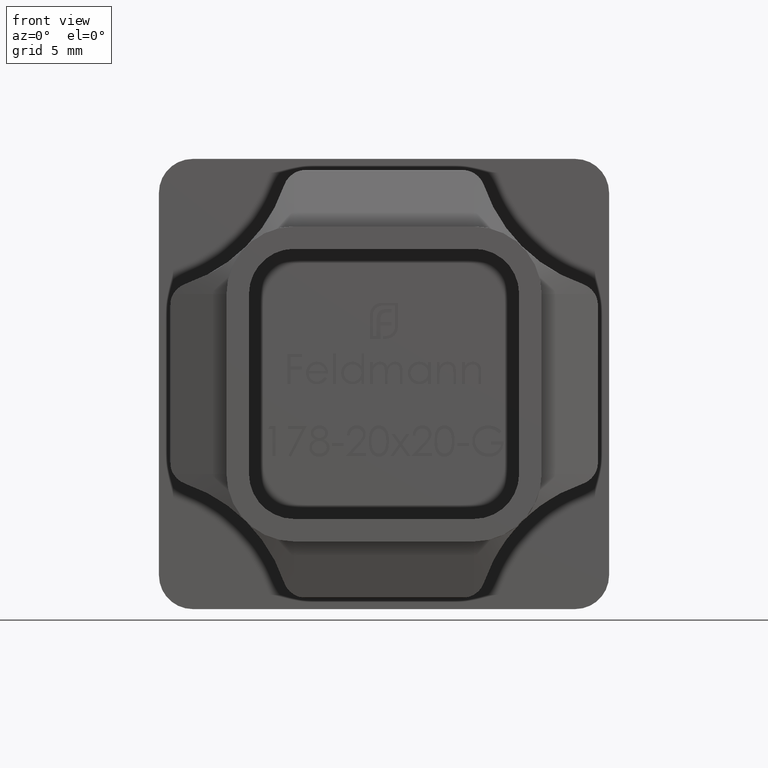
[diagram: clean part render]
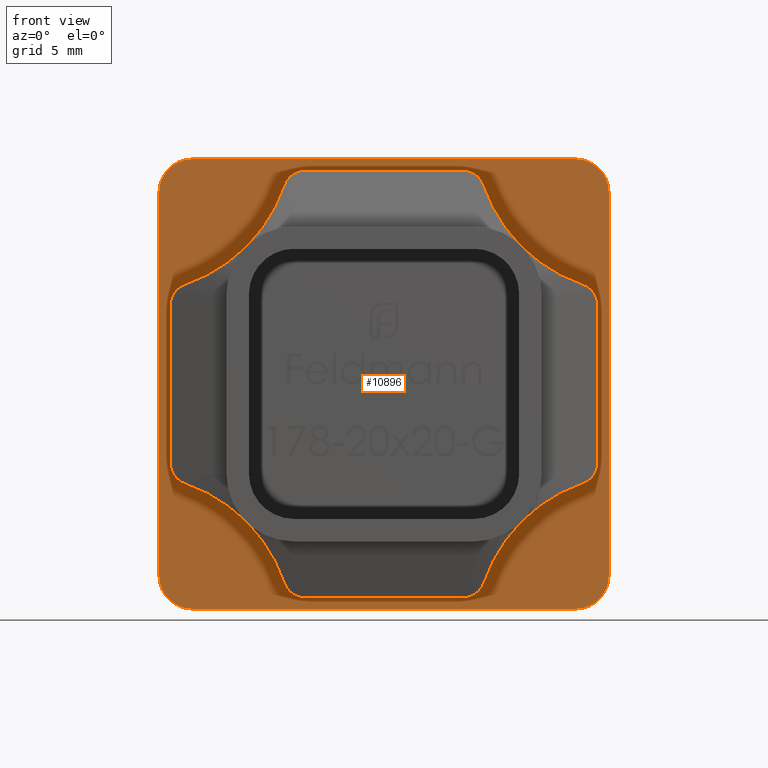
[diagram: same view with one face highlighted and labeled with its STEP entity id]
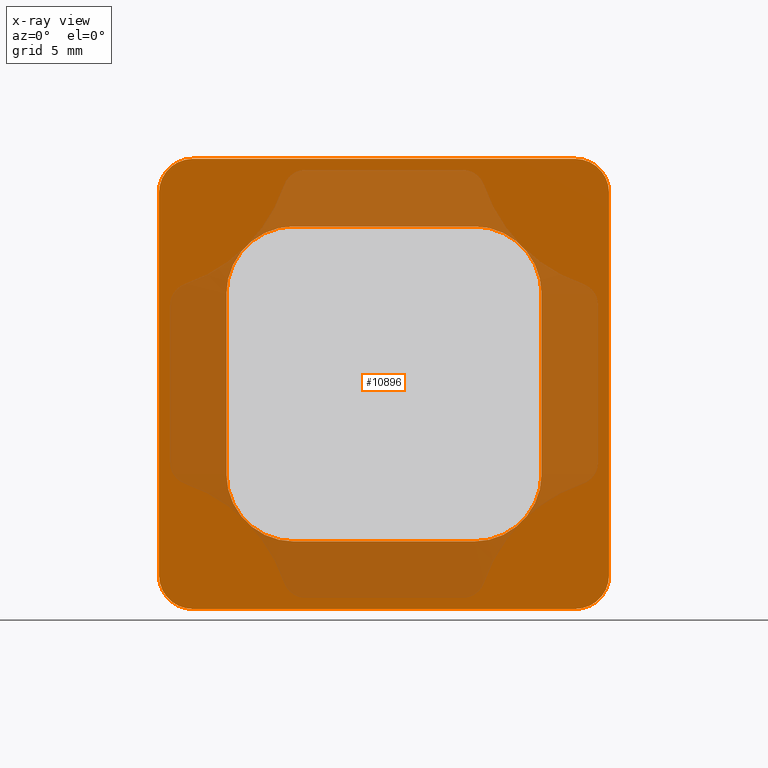
[diagram: x-ray of the same camera — body ghosted, the highlighted face saturated]
A machine part, front view. The second image highlights one B-rep face of the part: STEP entity #10896.
The next image is the same camera in x-ray: the body ghosted, the highlighted face saturated — about 46% of this face is hidden behind the body in this view.
In plain terms, the highlighted planar face has unit normal (0, 1, 0).
Its self-contained STEP definition (entity closure, byte-faithful):
#82 = CARTESIAN_POINT ( 'NONE',  ( 6.999999999999978684, 0.000000000000000000, 4.000000000000003553 ) ) ;
#128 = EDGE_CURVE ( 'NONE', #6361, #6644, #6801, .T. ) ;
#202 = LINE ( 'NONE', #16292, #3258 ) ;
#286 = ORIENTED_EDGE ( 'NONE', *, *, #5333, .F. ) ;
#381 = DIRECTION ( 'NONE',  ( 0.000000000000000000, 0.000000000000000000, 1.000000000000000000 ) ) ;
#415 = DIRECTION ( 'NONE',  ( 0.000000000000000000, -1.000000000000000000, 0.000000000000000000 ) ) ;
#865 = VERTEX_POINT ( 'NONE', #20430 ) ;
#1055 = DIRECTION ( 'NONE',  ( -1.000000000000000000, -0.000000000000000000, 6.938893903907224433E-16 ) ) ;
#1165 = CARTESIAN_POINT ( 'NONE',  ( -9.999999999999994671, 0.000000000000000000, 10.00000000000000888 ) ) ;
#1409 = CIRCLE ( 'NONE', #13344, 1.499999999999999556 ) ;
#1503 = DIRECTION ( 'NONE',  ( -0.000000000000000000, -1.000000000000000000, -0.000000000000000000 ) ) ;
#1582 = VECTOR ( 'NONE', #10842, 1000.000000000000000 ) ;
#1641 = ORIENTED_EDGE ( 'NONE', *, *, #15965, .F. ) ;
#1680 = DIRECTION ( 'NONE',  ( -0.000000000000000000, -1.000000000000000000, -0.000000000000000000 ) ) ;
#1891 = AXIS2_PLACEMENT_3D ( 'NONE', #11887, #2149, #7067 ) ;
#1899 = VECTOR ( 'NONE', #10188, 1000.000000000000000 ) ;
#2000 = EDGE_LOOP ( 'NONE', ( #15583, #3570, #17253, #18792, #8410, #13417, #17910, #14694 ) ) ;
#2032 = DIRECTION ( 'NONE',  ( 0.000000000000000000, -1.000000000000000000, 0.000000000000000000 ) ) ;
#2149 = DIRECTION ( 'NONE',  ( 0.000000000000000000, -1.000000000000000000, 0.000000000000000000 ) ) ;
#2583 = CARTESIAN_POINT ( 'NONE',  ( 0.000000000000000000, 0.000000000000000000, 0.000000000000000000 ) ) ;
#2601 = CARTESIAN_POINT ( 'NONE',  ( 3.999999999999982681, 0.000000000000000000, 6.999999999999999112 ) ) ;
#2667 = EDGE_CURVE ( 'NONE', #17663, #3038, #3731, .T. ) ;
#2718 = CARTESIAN_POINT ( 'NONE',  ( 3.999999999999982681, 0.000000000000000000, -6.999999999999985789 ) ) ;
#2800 = AXIS2_PLACEMENT_3D ( 'NONE', #2583, #7364, #4182 ) ;
#2885 = EDGE_CURVE ( 'NONE', #865, #7413, #1409, .T. ) ;
#3038 = VERTEX_POINT ( 'NONE', #4408 ) ;
#3155 = LINE ( 'NONE', #13072, #13070 ) ;
#3258 = VECTOR ( 'NONE', #17857, 1000.000000000000000 ) ;
#3343 = EDGE_CURVE ( 'NONE', #5403, #6361, #18701, .T. ) ;
#3550 = DIRECTION ( 'NONE',  ( 0.000000000000000000, 0.000000000000000000, 1.000000000000000000 ) ) ;
#3570 = ORIENTED_EDGE ( 'NONE', *, *, #11627, .T. ) ;
#3731 = CIRCLE ( 'NONE', #19217, 1.499999999999999556 ) ;
#3799 = AXIS2_PLACEMENT_3D ( 'NONE', #12810, #1503, #12881 ) ;
#4182 = DIRECTION ( 'NONE',  ( 0.000000000000000000, -0.000000000000000000, 1.000000000000000000 ) ) ;
#4408 = CARTESIAN_POINT ( 'NONE',  ( 8.500000000000021316, 0.000000000000000000, 10.00000000000000888 ) ) ;
#4433 = VERTEX_POINT ( 'NONE', #5335 ) ;
#4892 = ORIENTED_EDGE ( 'NONE', *, *, #11022, .F. ) ;
#4912 = CARTESIAN_POINT ( 'NONE',  ( 8.500000000000015987, 0.000000000000000000, -8.500000000000000000 ) ) ;
#5042 = EDGE_CURVE ( 'NONE', #18457, #8970, #18661, .T. ) ;
#5089 = AXIS2_PLACEMENT_3D ( 'NONE', #5430, #415, #12086 ) ;
#5296 = VERTEX_POINT ( 'NONE', #18138 ) ;
#5333 = EDGE_CURVE ( 'NONE', #7179, #5403, #18911, .T. ) ;
#5335 = CARTESIAN_POINT ( 'NONE',  ( -3.999999999999982681, 0.000000000000000000, 7.000000000000006217 ) ) ;
#5403 = VERTEX_POINT ( 'NONE', #8612 ) ;
#5430 = CARTESIAN_POINT ( 'NONE',  ( 3.999999999999982681, 0.000000000000000000, -3.999999999999982681 ) ) ;
#5562 = AXIS2_PLACEMENT_3D ( 'NONE', #19659, #2032, #13406 ) ;
#5701 = CARTESIAN_POINT ( 'NONE',  ( -9.999999999999994671, 0.000000000000000000, 8.500000000000007105 ) ) ;
#6186 = CARTESIAN_POINT ( 'NONE',  ( -9.999999999999994671, 0.000000000000000000, -9.999999999999987566 ) ) ;
#6361 = VERTEX_POINT ( 'NONE', #9913 ) ;
#6644 = VERTEX_POINT ( 'NONE', #2601 ) ;
#6801 = CIRCLE ( 'NONE', #1891, 2.999999999999999112 ) ;
#7067 = DIRECTION ( 'NONE',  ( 0.000000000000000000, 0.000000000000000000, 1.000000000000000000 ) ) ;
#7179 = VERTEX_POINT ( 'NONE', #2718 ) ;
#7364 = DIRECTION ( 'NONE',  ( 0.000000000000000000, 1.000000000000000000, 0.000000000000000000 ) ) ;
#7388 = CARTESIAN_POINT ( 'NONE',  ( -6.999999999999999112, 0.000000000000000000, -3.999999999999983569 ) ) ;
#7413 = VERTEX_POINT ( 'NONE', #5701 ) ;
#8199 = DIRECTION ( 'NONE',  ( 0.000000000000000000, -1.000000000000000000, 0.000000000000000000 ) ) ;
#8410 = ORIENTED_EDGE ( 'NONE', *, *, #18243, .F. ) ;
#8529 = LINE ( 'NONE', #18691, #10573 ) ;
#8612 = CARTESIAN_POINT ( 'NONE',  ( 6.999999999999978684, 0.000000000000000000, -3.999999999999982681 ) ) ;
#8875 = ORIENTED_EDGE ( 'NONE', *, *, #128, .F. ) ;
#8895 = CARTESIAN_POINT ( 'NONE',  ( 8.500000000000014211, 0.000000000000000000, -10.00000000000000000 ) ) ;
#8970 = VERTEX_POINT ( 'NONE', #7388 ) ;
#9067 = LINE ( 'NONE', #19877, #18458 ) ;
#9142 = AXIS2_PLACEMENT_3D ( 'NONE', #13034, #8199, #11384 ) ;
#9376 = FACE_OUTER_BOUND ( 'NONE', #2000, .T. ) ;
#9398 = CARTESIAN_POINT ( 'NONE',  ( -6.999999999999999112, 0.000000000000000000, 3.999999999999989786 ) ) ;
#9792 = DIRECTION ( 'NONE',  ( -1.000000000000000000, -0.000000000000000000, -0.000000000000000000 ) ) ;
#9859 = VERTEX_POINT ( 'NONE', #17037 ) ;
#9913 = CARTESIAN_POINT ( 'NONE',  ( 6.999999999999982236, 0.000000000000000000, 4.000000000000003553 ) ) ;
#10188 = DIRECTION ( 'NONE',  ( -0.000000000000000000, -0.000000000000000000, 1.000000000000000000 ) ) ;
#10408 = VERTEX_POINT ( 'NONE', #10604 ) ;
#10573 = VECTOR ( 'NONE', #1055, 1000.000000000000000 ) ;
#10604 = CARTESIAN_POINT ( 'NONE',  ( -3.999999999999996447, 0.000000000000000000, -6.999999999999985789 ) ) ;
#10842 = DIRECTION ( 'NONE',  ( 1.000000000000000000, 0.000000000000000000, 0.000000000000000000 ) ) ;
#10896 = ADVANCED_FACE ( 'NONE', ( #17290, #9376 ), #12331, .F. ) ;
#11022 = EDGE_CURVE ( 'NONE', #10408, #7179, #202, .T. ) ;
#11214 = DIRECTION ( 'NONE',  ( 0.000000000000000000, 0.000000000000000000, 1.000000000000000000 ) ) ;
#11384 = DIRECTION ( 'NONE',  ( 0.000000000000000000, 0.000000000000000000, 1.000000000000000000 ) ) ;
#11627 = EDGE_CURVE ( 'NONE', #17481, #9859, #18521, .T. ) ;
#11694 = DIRECTION ( 'NONE',  ( -0.000000000000000000, -1.000000000000000000, -0.000000000000000000 ) ) ;
#11887 = CARTESIAN_POINT ( 'NONE',  ( 3.999999999999982681, 0.000000000000000000, 3.999999999999996447 ) ) ;
#12086 = DIRECTION ( 'NONE',  ( 0.000000000000000000, 0.000000000000000000, -1.000000000000000000 ) ) ;
#12224 = EDGE_CURVE ( 'NONE', #15739, #5296, #14159, .T. ) ;
#12331 = PLANE ( 'NONE',  #2800 ) ;
#12465 = CARTESIAN_POINT ( 'NONE',  ( -6.999999999999999112, 0.000000000000000000, 3.999999999999989786 ) ) ;
#12810 = CARTESIAN_POINT ( 'NONE',  ( -8.499999999999994671, 0.000000000000000000, -8.499999999999989342 ) ) ;
#12881 = DIRECTION ( 'NONE',  ( 0.000000000000000000, 0.000000000000000000, 1.000000000000000000 ) ) ;
#12937 = EDGE_CURVE ( 'NONE', #4433, #18457, #18236, .T. ) ;
#13034 = CARTESIAN_POINT ( 'NONE',  ( -3.999999999999996447, -0.000000000000000000, -3.999999999999982681 ) ) ;
#13070 = VECTOR ( 'NONE', #9792, 1000.000000000000000 ) ;
#13072 = CARTESIAN_POINT ( 'NONE',  ( -3.999999999999982681, 0.000000000000000000, 6.999999999999999112 ) ) ;
#13320 = CIRCLE ( 'NONE', #9142, 3.000000000000002665 ) ;
#13344 = AXIS2_PLACEMENT_3D ( 'NONE', #19787, #11694, #381 ) ;
#13406 = DIRECTION ( 'NONE',  ( 0.000000000000000000, 0.000000000000000000, 1.000000000000000000 ) ) ;
#13417 = ORIENTED_EDGE ( 'NONE', *, *, #2885, .T. ) ;
#13531 = LINE ( 'NONE', #1165, #1582 ) ;
#13543 = EDGE_CURVE ( 'NONE', #15739, #7413, #19992, .T. ) ;
#13757 = DIRECTION ( 'NONE',  ( 2.312964634635743450E-15, 0.000000000000000000, 1.000000000000000000 ) ) ;
#13853 = ORIENTED_EDGE ( 'NONE', *, *, #3343, .F. ) ;
#14012 = CARTESIAN_POINT ( 'NONE',  ( -9.999999999999994671, 0.000000000000000000, -8.499999999999989342 ) ) ;
#14159 = CIRCLE ( 'NONE', #3799, 1.499999999999999556 ) ;
#14209 = DIRECTION ( 'NONE',  ( 0.000000000000000000, -0.000000000000000000, -1.000000000000000000 ) ) ;
#14694 = ORIENTED_EDGE ( 'NONE', *, *, #12224, .T. ) ;
#14769 = EDGE_CURVE ( 'NONE', #17663, #9859, #9067, .T. ) ;
#14976 = DIRECTION ( 'NONE',  ( -3.469446951953612217E-16, -0.000000000000000000, -1.000000000000000000 ) ) ;
#15265 = EDGE_CURVE ( 'NONE', #17481, #5296, #8529, .T. ) ;
#15485 = AXIS2_PLACEMENT_3D ( 'NONE', #4912, #1680, #3550 ) ;
#15583 = ORIENTED_EDGE ( 'NONE', *, *, #15265, .F. ) ;
#15739 = VERTEX_POINT ( 'NONE', #14012 ) ;
#15826 = ORIENTED_EDGE ( 'NONE', *, *, #12937, .F. ) ;
#15965 = EDGE_CURVE ( 'NONE', #8970, #10408, #13320, .T. ) ;
#16292 = CARTESIAN_POINT ( 'NONE',  ( -3.999999999999996447, -0.000000000000000000, -6.999999999999985789 ) ) ;
#16378 = EDGE_CURVE ( 'NONE', #6644, #4433, #3155, .T. ) ;
#16633 = CARTESIAN_POINT ( 'NONE',  ( 10.00000000000002309, 0.000000000000000000, 8.500000000000007105 ) ) ;
#16739 = ORIENTED_EDGE ( 'NONE', *, *, #5042, .F. ) ;
#16992 = DIRECTION ( 'NONE',  ( -0.000000000000000000, -1.000000000000000000, -0.000000000000000000 ) ) ;
#17037 = CARTESIAN_POINT ( 'NONE',  ( 10.00000000000001599, 0.000000000000000000, -8.500000000000000000 ) ) ;
#17145 = VECTOR ( 'NONE', #14209, 1000.000000000000000 ) ;
#17253 = ORIENTED_EDGE ( 'NONE', *, *, #14769, .F. ) ;
#17290 = FACE_BOUND ( 'NONE', #17317, .T. ) ;
#17317 = EDGE_LOOP ( 'NONE', ( #18119, #8875, #13853, #286, #4892, #1641, #16739, #15826 ) ) ;
#17481 = VERTEX_POINT ( 'NONE', #8895 ) ;
#17663 = VERTEX_POINT ( 'NONE', #16633 ) ;
#17857 = DIRECTION ( 'NONE',  ( 1.000000000000000000, 0.000000000000000000, 0.000000000000000000 ) ) ;
#17910 = ORIENTED_EDGE ( 'NONE', *, *, #13543, .F. ) ;
#18119 = ORIENTED_EDGE ( 'NONE', *, *, #16378, .F. ) ;
#18138 = CARTESIAN_POINT ( 'NONE',  ( -8.499999999999996447, 0.000000000000000000, -9.999999999999989342 ) ) ;
#18236 = CIRCLE ( 'NONE', #5562, 3.000000000000009770 ) ;
#18243 = EDGE_CURVE ( 'NONE', #865, #3038, #13531, .T. ) ;
#18457 = VERTEX_POINT ( 'NONE', #9398 ) ;
#18458 = VECTOR ( 'NONE', #14976, 1000.000000000000000 ) ;
#18521 = CIRCLE ( 'NONE', #15485, 1.499999999999999556 ) ;
#18661 = LINE ( 'NONE', #12465, #17145 ) ;
#18691 = CARTESIAN_POINT ( 'NONE',  ( -9.999999999999994671, 0.000000000000000000, -9.999999999999987566 ) ) ;
#18695 = CARTESIAN_POINT ( 'NONE',  ( 8.500000000000023093, 0.000000000000000000, 8.500000000000007105 ) ) ;
#18701 = LINE ( 'NONE', #82, #1899 ) ;
#18792 = ORIENTED_EDGE ( 'NONE', *, *, #2667, .T. ) ;
#18911 = CIRCLE ( 'NONE', #5089, 2.999999999999999112 ) ;
#19217 = AXIS2_PLACEMENT_3D ( 'NONE', #18695, #16992, #13757 ) ;
#19659 = CARTESIAN_POINT ( 'NONE',  ( -3.999999999999982681, 0.000000000000000000, 3.999999999999996447 ) ) ;
#19787 = CARTESIAN_POINT ( 'NONE',  ( -8.499999999999994671, 0.000000000000000000, 8.500000000000008882 ) ) ;
#19877 = CARTESIAN_POINT ( 'NONE',  ( 10.00000000000001599, 0.000000000000000000, -10.00000000000000178 ) ) ;
#19992 = LINE ( 'NONE', #6186, #20248 ) ;
#20248 = VECTOR ( 'NONE', #11214, 1000.000000000000000 ) ;
#20430 = CARTESIAN_POINT ( 'NONE',  ( -8.499999999999994671, 0.000000000000000000, 10.00000000000000888 ) ) ;